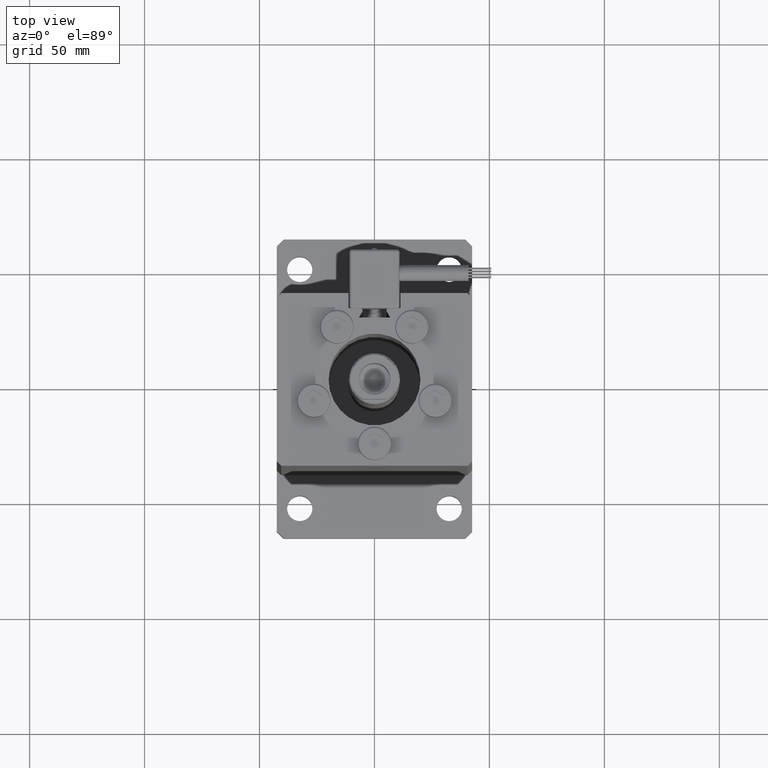
[diagram: clean part render]
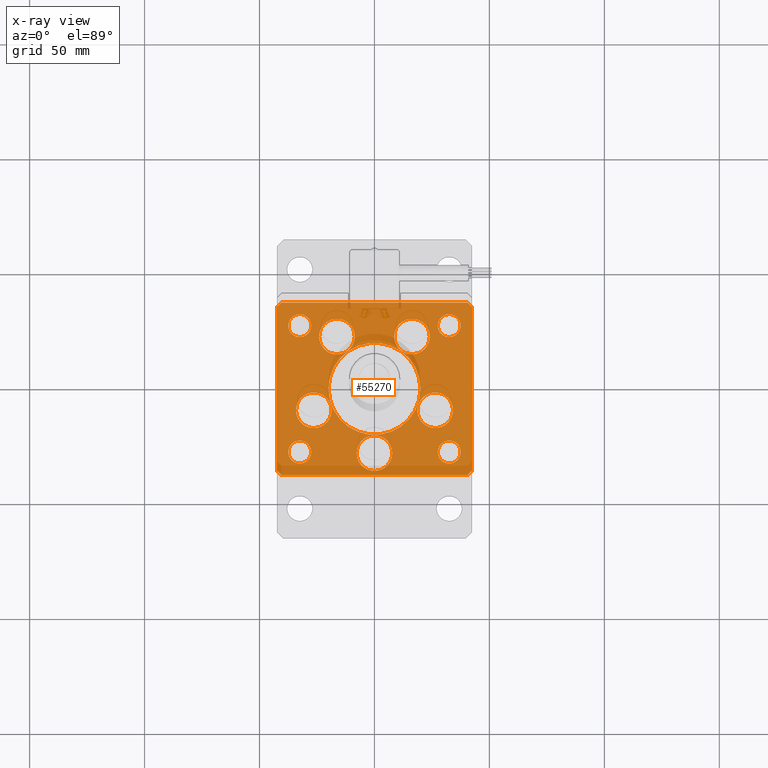
[diagram: x-ray — body ghosted, one internal face saturated and labeled with its STEP entity id]
A machine part, top view, then the same camera in x-ray: the body is ghosted and one INTERNAL B-rep face — a face not visible from any outside direction — is saturated and labeled: STEP entity #55270.
In plain terms, the highlighted planar face has unit normal (0, 0, -1).
Its self-contained STEP definition (entity closure, byte-faithful):
#560 = ORIENTED_EDGE ( 'NONE', *, *, #10872, .F. ) ;
#1086 = ORIENTED_EDGE ( 'NONE', *, *, #26022, .T. ) ;
#1440 = FACE_BOUND ( 'NONE', #5302, .T. ) ;
#2058 = VECTOR ( 'NONE', #14228, 1000.000000000000000 ) ;
#2232 = LINE ( 'NONE', #50624, #31584 ) ;
#2736 = CARTESIAN_POINT ( 'NONE',  ( -32.50000000000000000, -27.49999999999999645, 0.000000000000000000 ) ) ;
#3132 = AXIS2_PLACEMENT_3D ( 'NONE', #14532, #31913, #49265 ) ;
#3239 = DIRECTION ( 'NONE',  ( 0.000000000000000000, -0.000000000000000000, -1.000000000000000000 ) ) ;
#3583 = EDGE_LOOP ( 'NONE', ( #3761, #11223 ) ) ;
#3761 = ORIENTED_EDGE ( 'NONE', *, *, #19691, .T. ) ;
#3901 = AXIS2_PLACEMENT_3D ( 'NONE', #27201, #44279, #27478 ) ;
#4150 = CIRCLE ( 'NONE', #34140, 20.00000000000000000 ) ;
#4163 = CARTESIAN_POINT ( 'NONE',  ( -40.50000000000000711, 37.49999999999997868, 0.000000000000000000 ) ) ;
#4589 = CIRCLE ( 'NONE', #36421, 5.000000000000000888 ) ;
#4790 = VERTEX_POINT ( 'NONE', #9635 ) ;
#4816 = AXIS2_PLACEMENT_3D ( 'NONE', #16405, #33785, #25252 ) ;
#5302 = EDGE_LOOP ( 'NONE', ( #31663, #30830 ) ) ;
#5481 = CIRCLE ( 'NONE', #37318, 4.999999999999997335 ) ;
#5540 = EDGE_CURVE ( 'NONE', #9070, #12400, #52358, .T. ) ;
#5751 = VECTOR ( 'NONE', #47230, 1000.000000000000114 ) ;
#6483 = VERTEX_POINT ( 'NONE', #52145 ) ;
#7443 = CARTESIAN_POINT ( 'NONE',  ( 32.50000000000000000, -27.49999999999999645, 0.000000000000000000 ) ) ;
#7644 = AXIS2_PLACEMENT_3D ( 'NONE', #28196, #22791, #40168 ) ;
#7765 = CIRCLE ( 'NONE', #32348, 7.750000000000003553 ) ;
#8194 = CARTESIAN_POINT ( 'NONE',  ( 32.50000000000000000, 27.49999999999999645, 0.000000000000000000 ) ) ;
#8254 = CARTESIAN_POINT ( 'NONE',  ( 42.50000000000000711, -35.50000000000000000, 0.000000000000000000 ) ) ;
#8711 = VERTEX_POINT ( 'NONE', #11516 ) ;
#9070 = VERTEX_POINT ( 'NONE', #13346 ) ;
#9419 = ORIENTED_EDGE ( 'NONE', *, *, #10493, .T. ) ;
#9501 = ORIENTED_EDGE ( 'NONE', *, *, #23348, .T. ) ;
#9635 = CARTESIAN_POINT ( 'NONE',  ( 27.50000000000000355, 27.49999999999999645, 0.000000000000000000 ) ) ;
#9786 = EDGE_CURVE ( 'NONE', #30646, #38409, #31173, .T. ) ;
#9896 = VERTEX_POINT ( 'NONE', #25244 ) ;
#10011 = CARTESIAN_POINT ( 'NONE',  ( -32.50000000000000000, 27.50000000000000355, 0.000000000000000000 ) ) ;
#10130 = VERTEX_POINT ( 'NONE', #20256 ) ;
#10262 = FACE_BOUND ( 'NONE', #12512, .T. ) ;
#10414 = CIRCLE ( 'NONE', #42260, 5.000000000000000888 ) ;
#10417 = VERTEX_POINT ( 'NONE', #33853 ) ;
#10446 = DIRECTION ( 'NONE',  ( 1.000000000000000000, 0.000000000000000000, 0.000000000000000000 ) ) ;
#10493 = EDGE_CURVE ( 'NONE', #36242, #31566, #12500, .T. ) ;
#10542 = AXIS2_PLACEMENT_3D ( 'NONE', #41645, #18877, #28269 ) ;
#10872 = EDGE_CURVE ( 'NONE', #52419, #10417, #51175, .T. ) ;
#10911 = CARTESIAN_POINT ( 'NONE',  ( -27.50000000000000000, 27.50000000000000355, 0.000000000000000000 ) ) ;
#11223 = ORIENTED_EDGE ( 'NONE', *, *, #39449, .T. ) ;
#11233 = VERTEX_POINT ( 'NONE', #44781 ) ;
#11516 = CARTESIAN_POINT ( 'NONE',  ( -8.572913342905431833, 22.74999999999999645, 0.000000000000000000 ) ) ;
#11975 = DIRECTION ( 'NONE',  ( 1.000000000000000000, 0.000000000000000000, 0.000000000000000000 ) ) ;
#12201 = CARTESIAN_POINT ( 'NONE',  ( -32.50000000000000000, 27.50000000000000355, 0.000000000000000000 ) ) ;
#12331 = DIRECTION ( 'NONE',  ( 1.000000000000000000, 0.000000000000000000, 0.000000000000000000 ) ) ;
#12400 = VERTEX_POINT ( 'NONE', #41804 ) ;
#12430 = AXIS2_PLACEMENT_3D ( 'NONE', #32627, #28941, #54251 ) ;
#12443 = VERTEX_POINT ( 'NONE', #13309 ) ;
#12474 = CIRCLE ( 'NONE', #19751, 5.000000000000000888 ) ;
#12500 = LINE ( 'NONE', #34698, #5751 ) ;
#12512 = EDGE_LOOP ( 'NONE', ( #23131, #41492 ) ) ;
#12590 = CIRCLE ( 'NONE', #19824, 7.750000000000000000 ) ;
#12877 = EDGE_CURVE ( 'NONE', #21433, #11233, #38562, .T. ) ;
#12887 = LINE ( 'NONE', #51331, #32508 ) ;
#13249 = VERTEX_POINT ( 'NONE', #33287 ) ;
#13309 = CARTESIAN_POINT ( 'NONE',  ( -42.50000000000000711, 35.49999999999997158, 0.000000000000000000 ) ) ;
#13346 = CARTESIAN_POINT ( 'NONE',  ( -40.49999999999999289, -37.50000000000002132, 0.000000000000000000 ) ) ;
#13405 = AXIS2_PLACEMENT_3D ( 'NONE', #8194, #52311, #51466 ) ;
#13435 = ORIENTED_EDGE ( 'NONE', *, *, #46544, .T. ) ;
#13699 = FACE_BOUND ( 'NONE', #25543, .T. ) ;
#14038 = EDGE_CURVE ( 'NONE', #33421, #22844, #10414, .T. ) ;
#14098 = CARTESIAN_POINT ( 'NONE',  ( -32.50000000000000000, -27.49999999999999645, 0.000000000000000000 ) ) ;
#14118 = ORIENTED_EDGE ( 'NONE', *, *, #33695, .T. ) ;
#14228 = DIRECTION ( 'NONE',  ( 9.773090005503140331E-17, -1.000000000000000000, 0.000000000000000000 ) ) ;
#14532 = CARTESIAN_POINT ( 'NONE',  ( 0.000000000000000000, 0.000000000000000000, 0.000000000000000000 ) ) ;
#14639 = VERTEX_POINT ( 'NONE', #24042 ) ;
#14709 = ORIENTED_EDGE ( 'NONE', *, *, #9786, .T. ) ;
#15345 = DIRECTION ( 'NONE',  ( 1.000000000000000000, 0.000000000000000000, 0.000000000000000000 ) ) ;
#15735 = CARTESIAN_POINT ( 'NONE',  ( 0.000000000000000000, -1.387778780781445676E-14, 0.000000000000000000 ) ) ;
#16405 = CARTESIAN_POINT ( 'NONE',  ( 0.000000000000000000, -1.387778780781445676E-14, 0.000000000000000000 ) ) ;
#16651 = EDGE_LOOP ( 'NONE', ( #25082, #28557 ) ) ;
#17016 = CARTESIAN_POINT ( 'NONE',  ( -7.749999999999996447, -28.00000000000000000, 0.000000000000000000 ) ) ;
#17022 = EDGE_LOOP ( 'NONE', ( #56254, #25634 ) ) ;
#17234 = EDGE_CURVE ( 'NONE', #28777, #10130, #17815, .T. ) ;
#17281 = AXIS2_PLACEMENT_3D ( 'NONE', #26561, #52469, #44212 ) ;
#17309 = DIRECTION ( 'NONE',  ( 0.000000000000000000, -0.000000000000000000, -1.000000000000000000 ) ) ;
#17772 = CARTESIAN_POINT ( 'NONE',  ( 16.32291334290542295, 22.75000000000000000, 0.000000000000000000 ) ) ;
#17815 = CIRCLE ( 'NONE', #10542, 7.750000000000000000 ) ;
#17974 = FACE_BOUND ( 'NONE', #16651, .T. ) ;
#18246 = FACE_BOUND ( 'NONE', #51951, .T. ) ;
#18270 = DIRECTION ( 'NONE',  ( 1.000000000000000000, 0.000000000000000000, 0.000000000000000000 ) ) ;
#18284 = VERTEX_POINT ( 'NONE', #36108 ) ;
#18490 = CARTESIAN_POINT ( 'NONE',  ( -42.50000000000000711, 35.49999999999997158, 0.000000000000000000 ) ) ;
#18877 = DIRECTION ( 'NONE',  ( 0.000000000000000000, -0.000000000000000000, -1.000000000000000000 ) ) ;
#19612 = DIRECTION ( 'NONE',  ( 0.7071067811865474617, 0.7071067811865474617, 0.000000000000000000 ) ) ;
#19691 = EDGE_CURVE ( 'NONE', #9896, #26443, #21633, .T. ) ;
#19741 = DIRECTION ( 'NONE',  ( 1.000000000000000000, 0.000000000000000000, 0.000000000000000000 ) ) ;
#19751 = AXIS2_PLACEMENT_3D ( 'NONE', #10011, #35365, #18270 ) ;
#19824 = AXIS2_PLACEMENT_3D ( 'NONE', #21072, #42448, #34468 ) ;
#19956 = CARTESIAN_POINT ( 'NONE',  ( -26.39865316429776954, -9.333333333333337478, 0.000000000000000000 ) ) ;
#20256 = CARTESIAN_POINT ( 'NONE',  ( 34.14865316429776954, -9.333333333333328596, 0.000000000000000000 ) ) ;
#20618 = EDGE_LOOP ( 'NONE', ( #37296, #13435 ) ) ;
#21072 = CARTESIAN_POINT ( 'NONE',  ( 26.39865316429776954, -9.333333333333330373, 0.000000000000000000 ) ) ;
#21159 = VECTOR ( 'NONE', #53189, 1000.000000000000000 ) ;
#21433 = VERTEX_POINT ( 'NONE', #29994 ) ;
#21488 = CARTESIAN_POINT ( 'NONE',  ( -26.39865316429776954, -9.333333333333337478, 0.000000000000000000 ) ) ;
#21633 = CIRCLE ( 'NONE', #54359, 7.750000000000003553 ) ;
#21836 = CIRCLE ( 'NONE', #17281, 7.750000000000000000 ) ;
#21948 = VECTOR ( 'NONE', #50817, 1000.000000000000000 ) ;
#22440 = EDGE_CURVE ( 'NONE', #53728, #50113, #21836, .T. ) ;
#22531 = FACE_BOUND ( 'NONE', #41289, .T. ) ;
#22603 = EDGE_CURVE ( 'NONE', #18284, #13249, #5481, .T. ) ;
#22791 = DIRECTION ( 'NONE',  ( 0.000000000000000000, -0.000000000000000000, -1.000000000000000000 ) ) ;
#22844 = VERTEX_POINT ( 'NONE', #51484 ) ;
#22850 = EDGE_CURVE ( 'NONE', #6483, #4790, #38256, .T. ) ;
#23018 = CARTESIAN_POINT ( 'NONE',  ( -37.50000000000000711, -27.49999999999999645, 0.000000000000000000 ) ) ;
#23131 = ORIENTED_EDGE ( 'NONE', *, *, #43497, .T. ) ;
#23348 = EDGE_CURVE ( 'NONE', #38409, #30646, #4589, .T. ) ;
#24042 = CARTESIAN_POINT ( 'NONE',  ( -42.50000000000000000, -35.50000000000000711, 0.000000000000000000 ) ) ;
#24504 = LINE ( 'NONE', #37897, #47716 ) ;
#24580 = DIRECTION ( 'NONE',  ( 0.000000000000000000, -0.000000000000000000, -1.000000000000000000 ) ) ;
#24724 = EDGE_CURVE ( 'NONE', #50113, #53728, #50993, .T. ) ;
#24808 = DIRECTION ( 'NONE',  ( 1.000000000000000000, 0.000000000000000000, 0.000000000000000000 ) ) ;
#24929 = DIRECTION ( 'NONE',  ( -1.000000000000000000, -3.426614273534436165E-16, 0.000000000000000000 ) ) ;
#25082 = ORIENTED_EDGE ( 'NONE', *, *, #22850, .F. ) ;
#25244 = CARTESIAN_POINT ( 'NONE',  ( 8.572913342905422951, 22.75000000000000000, 0.000000000000000000 ) ) ;
#25252 = DIRECTION ( 'NONE',  ( 1.000000000000000000, 0.000000000000000000, 0.000000000000000000 ) ) ;
#25543 = EDGE_LOOP ( 'NONE', ( #42970, #560 ) ) ;
#25634 = ORIENTED_EDGE ( 'NONE', *, *, #22440, .T. ) ;
#25862 = VERTEX_POINT ( 'NONE', #4163 ) ;
#25998 = EDGE_CURVE ( 'NONE', #31566, #25862, #33473, .T. ) ;
#26022 = EDGE_CURVE ( 'NONE', #14639, #9070, #55358, .T. ) ;
#26443 = VERTEX_POINT ( 'NONE', #38517 ) ;
#26561 = CARTESIAN_POINT ( 'NONE',  ( 3.429011037612589276E-15, -28.00000000000000000, 0.000000000000000000 ) ) ;
#27086 = CARTESIAN_POINT ( 'NONE',  ( 42.49999999999992895, 35.50000000000000000, 0.000000000000000000 ) ) ;
#27201 = CARTESIAN_POINT ( 'NONE',  ( -16.32291334290543006, 22.74999999999999645, 0.000000000000000000 ) ) ;
#27478 = DIRECTION ( 'NONE',  ( 1.000000000000000000, 0.000000000000000000, 0.000000000000000000 ) ) ;
#27942 = ORIENTED_EDGE ( 'NONE', *, *, #25998, .T. ) ;
#28196 = CARTESIAN_POINT ( 'NONE',  ( -16.32291334290543006, 22.74999999999999645, 0.000000000000000000 ) ) ;
#28269 = DIRECTION ( 'NONE',  ( 1.000000000000000000, 0.000000000000000000, 0.000000000000000000 ) ) ;
#28356 = CARTESIAN_POINT ( 'NONE',  ( -42.50000000000000000, -35.50000000000000711, 0.000000000000000000 ) ) ;
#28557 = ORIENTED_EDGE ( 'NONE', *, *, #44120, .F. ) ;
#28694 = EDGE_CURVE ( 'NONE', #12443, #14639, #39864, .T. ) ;
#28777 = VERTEX_POINT ( 'NONE', #48680 ) ;
#28941 = DIRECTION ( 'NONE',  ( 0.000000000000000000, -0.000000000000000000, -1.000000000000000000 ) ) ;
#29994 = CARTESIAN_POINT ( 'NONE',  ( -34.14865316429776954, -9.333333333333337478, 0.000000000000000000 ) ) ;
#30095 = AXIS2_PLACEMENT_3D ( 'NONE', #34417, #30152, #47500 ) ;
#30152 = DIRECTION ( 'NONE',  ( -0.000000000000000000, 0.000000000000000000, 1.000000000000000000 ) ) ;
#30160 = CARTESIAN_POINT ( 'NONE',  ( -20.00000000000000000, -1.142849420951974906E-14, 0.000000000000000000 ) ) ;
#30276 = DIRECTION ( 'NONE',  ( -0.7071067811865463515, -0.7071067811865487940, 0.000000000000000000 ) ) ;
#30462 = CIRCLE ( 'NONE', #34053, 7.750000000000000000 ) ;
#30646 = VERTEX_POINT ( 'NONE', #23018 ) ;
#30813 = FACE_BOUND ( 'NONE', #3583, .T. ) ;
#30830 = ORIENTED_EDGE ( 'NONE', *, *, #51686, .T. ) ;
#31157 = DIRECTION ( 'NONE',  ( 0.000000000000000000, -0.000000000000000000, -1.000000000000000000 ) ) ;
#31173 = CIRCLE ( 'NONE', #41161, 5.000000000000000888 ) ;
#31365 = FACE_BOUND ( 'NONE', #20618, .T. ) ;
#31566 = VERTEX_POINT ( 'NONE', #32130 ) ;
#31584 = VECTOR ( 'NONE', #19612, 1000.000000000000114 ) ;
#31663 = ORIENTED_EDGE ( 'NONE', *, *, #36325, .T. ) ;
#31751 = ORIENTED_EDGE ( 'NONE', *, *, #44678, .T. ) ;
#31913 = DIRECTION ( 'NONE',  ( -0.000000000000000000, 0.000000000000000000, 1.000000000000000000 ) ) ;
#32010 = CARTESIAN_POINT ( 'NONE',  ( 16.32291334290542295, 22.75000000000000000, 0.000000000000000000 ) ) ;
#32130 = CARTESIAN_POINT ( 'NONE',  ( 40.49999999999991473, 37.50000000000000711, 0.000000000000000000 ) ) ;
#32183 = CIRCLE ( 'NONE', #7644, 7.750000000000000000 ) ;
#32348 = AXIS2_PLACEMENT_3D ( 'NONE', #32010, #3239, #46786 ) ;
#32432 = ORIENTED_EDGE ( 'NONE', *, *, #43995, .T. ) ;
#32479 = ORIENTED_EDGE ( 'NONE', *, *, #14038, .F. ) ;
#32508 = VECTOR ( 'NONE', #30276, 1000.000000000000000 ) ;
#32627 = CARTESIAN_POINT ( 'NONE',  ( 32.50000000000000000, -27.49999999999999645, 0.000000000000000000 ) ) ;
#33031 = ORIENTED_EDGE ( 'NONE', *, *, #28694, .T. ) ;
#33287 = CARTESIAN_POINT ( 'NONE',  ( 37.50000000000000000, -27.49999999999999645, 0.000000000000000000 ) ) ;
#33341 = DIRECTION ( 'NONE',  ( -1.172770800660376741E-15, 1.000000000000000000, 0.000000000000000000 ) ) ;
#33421 = VERTEX_POINT ( 'NONE', #10911 ) ;
#33473 = LINE ( 'NONE', #38026, #33776 ) ;
#33695 = EDGE_CURVE ( 'NONE', #40473, #36242, #24504, .T. ) ;
#33776 = VECTOR ( 'NONE', #24929, 1000.000000000000000 ) ;
#33785 = DIRECTION ( 'NONE',  ( 0.000000000000000000, 0.000000000000000000, 1.000000000000000000 ) ) ;
#33853 = CARTESIAN_POINT ( 'NONE',  ( 20.00000000000000000, -1.387778780781445676E-14, 0.000000000000000000 ) ) ;
#34053 = AXIS2_PLACEMENT_3D ( 'NONE', #21488, #42559, #56194 ) ;
#34140 = AXIS2_PLACEMENT_3D ( 'NONE', #15735, #54178, #19741 ) ;
#34417 = CARTESIAN_POINT ( 'NONE',  ( 32.50000000000000000, 27.49999999999999645, 0.000000000000000000 ) ) ;
#34468 = DIRECTION ( 'NONE',  ( 1.000000000000000000, 0.000000000000000000, 0.000000000000000000 ) ) ;
#34698 = CARTESIAN_POINT ( 'NONE',  ( 42.49999999999992895, 35.50000000000000000, 0.000000000000000000 ) ) ;
#35343 = FACE_OUTER_BOUND ( 'NONE', #38993, .T. ) ;
#35365 = DIRECTION ( 'NONE',  ( -0.000000000000000000, 0.000000000000000000, 1.000000000000000000 ) ) ;
#36108 = CARTESIAN_POINT ( 'NONE',  ( 27.50000000000000355, -27.49999999999999645, 0.000000000000000000 ) ) ;
#36242 = VERTEX_POINT ( 'NONE', #27086 ) ;
#36325 = EDGE_CURVE ( 'NONE', #46789, #8711, #32183, .T. ) ;
#36421 = AXIS2_PLACEMENT_3D ( 'NONE', #14098, #24580, #12331 ) ;
#36805 = EDGE_CURVE ( 'NONE', #11233, #21433, #30462, .T. ) ;
#36990 = CIRCLE ( 'NONE', #12430, 4.999999999999997335 ) ;
#37296 = ORIENTED_EDGE ( 'NONE', *, *, #17234, .T. ) ;
#37318 = AXIS2_PLACEMENT_3D ( 'NONE', #7443, #37918, #24808 ) ;
#37488 = DIRECTION ( 'NONE',  ( 0.000000000000000000, -0.000000000000000000, -1.000000000000000000 ) ) ;
#37897 = CARTESIAN_POINT ( 'NONE',  ( 42.50000000000000711, -35.50000000000000000, 0.000000000000000000 ) ) ;
#37918 = DIRECTION ( 'NONE',  ( 0.000000000000000000, -0.000000000000000000, -1.000000000000000000 ) ) ;
#37969 = CIRCLE ( 'NONE', #13405, 4.999999999999997335 ) ;
#38026 = CARTESIAN_POINT ( 'NONE',  ( 40.49999999999991473, 37.50000000000000711, 0.000000000000000000 ) ) ;
#38256 = CIRCLE ( 'NONE', #30095, 4.999999999999997335 ) ;
#38409 = VERTEX_POINT ( 'NONE', #52581 ) ;
#38517 = CARTESIAN_POINT ( 'NONE',  ( 24.07291334290542650, 22.75000000000000000, 0.000000000000000000 ) ) ;
#38562 = CIRCLE ( 'NONE', #51256, 7.750000000000000000 ) ;
#38993 = EDGE_LOOP ( 'NONE', ( #1086, #41975, #32432, #14118, #9419, #27942, #31751, #33031 ) ) ;
#39449 = EDGE_CURVE ( 'NONE', #26443, #9896, #7765, .T. ) ;
#39632 = FACE_BOUND ( 'NONE', #42880, .T. ) ;
#39641 = ORIENTED_EDGE ( 'NONE', *, *, #36805, .T. ) ;
#39864 = LINE ( 'NONE', #18490, #2058 ) ;
#39896 = EDGE_CURVE ( 'NONE', #10417, #52419, #4150, .T. ) ;
#40168 = DIRECTION ( 'NONE',  ( 1.000000000000000000, 0.000000000000000000, 0.000000000000000000 ) ) ;
#40250 = DIRECTION ( 'NONE',  ( 1.000000000000000000, 0.000000000000000000, 0.000000000000000000 ) ) ;
#40473 = VERTEX_POINT ( 'NONE', #8254 ) ;
#41161 = AXIS2_PLACEMENT_3D ( 'NONE', #2736, #37488, #10446 ) ;
#41289 = EDGE_LOOP ( 'NONE', ( #32479, #55248 ) ) ;
#41492 = ORIENTED_EDGE ( 'NONE', *, *, #22603, .T. ) ;
#41645 = CARTESIAN_POINT ( 'NONE',  ( 26.39865316429776954, -9.333333333333330373, 0.000000000000000000 ) ) ;
#41804 = CARTESIAN_POINT ( 'NONE',  ( 40.50000000000000000, -37.50000000000000711, 0.000000000000000000 ) ) ;
#41975 = ORIENTED_EDGE ( 'NONE', *, *, #5540, .T. ) ;
#42260 = AXIS2_PLACEMENT_3D ( 'NONE', #12201, #46366, #15345 ) ;
#42351 = ORIENTED_EDGE ( 'NONE', *, *, #12877, .T. ) ;
#42448 = DIRECTION ( 'NONE',  ( 0.000000000000000000, -0.000000000000000000, -1.000000000000000000 ) ) ;
#42559 = DIRECTION ( 'NONE',  ( 0.000000000000000000, -0.000000000000000000, -1.000000000000000000 ) ) ;
#42880 = EDGE_LOOP ( 'NONE', ( #42351, #39641 ) ) ;
#42970 = ORIENTED_EDGE ( 'NONE', *, *, #39896, .F. ) ;
#43497 = EDGE_CURVE ( 'NONE', #13249, #18284, #36990, .T. ) ;
#43507 = CARTESIAN_POINT ( 'NONE',  ( 3.429011037612589276E-15, -28.00000000000000000, 0.000000000000000000 ) ) ;
#43887 = PLANE ( 'NONE',  #3132 ) ;
#43995 = EDGE_CURVE ( 'NONE', #12400, #40473, #2232, .T. ) ;
#44120 = EDGE_CURVE ( 'NONE', #4790, #6483, #37969, .T. ) ;
#44212 = DIRECTION ( 'NONE',  ( 1.000000000000000000, 0.000000000000000000, 0.000000000000000000 ) ) ;
#44279 = DIRECTION ( 'NONE',  ( 0.000000000000000000, -0.000000000000000000, -1.000000000000000000 ) ) ;
#44678 = EDGE_CURVE ( 'NONE', #25862, #12443, #12887, .T. ) ;
#44781 = CARTESIAN_POINT ( 'NONE',  ( -18.64865316429776954, -9.333333333333335702, 0.000000000000000000 ) ) ;
#44823 = EDGE_CURVE ( 'NONE', #22844, #33421, #12474, .T. ) ;
#46366 = DIRECTION ( 'NONE',  ( -0.000000000000000000, 0.000000000000000000, 1.000000000000000000 ) ) ;
#46544 = EDGE_CURVE ( 'NONE', #10130, #28777, #12590, .T. ) ;
#46786 = DIRECTION ( 'NONE',  ( 1.000000000000000000, 0.000000000000000000, 0.000000000000000000 ) ) ;
#46789 = VERTEX_POINT ( 'NONE', #51474 ) ;
#47230 = DIRECTION ( 'NONE',  ( -0.7071067811865474617, 0.7071067811865474617, 0.000000000000000000 ) ) ;
#47500 = DIRECTION ( 'NONE',  ( 1.000000000000000000, 0.000000000000000000, 0.000000000000000000 ) ) ;
#47716 = VECTOR ( 'NONE', #33341, 1000.000000000000000 ) ;
#47781 = DIRECTION ( 'NONE',  ( 1.000000000000000000, 0.000000000000000000, 0.000000000000000000 ) ) ;
#48288 = AXIS2_PLACEMENT_3D ( 'NONE', #43507, #17309, #47781 ) ;
#48680 = CARTESIAN_POINT ( 'NONE',  ( 18.64865316429776954, -9.333333333333330373, 0.000000000000000000 ) ) ;
#48921 = CARTESIAN_POINT ( 'NONE',  ( -40.49999999999999289, -37.50000000000002132, 0.000000000000000000 ) ) ;
#49265 = DIRECTION ( 'NONE',  ( 1.000000000000000000, 0.000000000000000000, 0.000000000000000000 ) ) ;
#50113 = VERTEX_POINT ( 'NONE', #17016 ) ;
#50265 = CIRCLE ( 'NONE', #3901, 7.750000000000000000 ) ;
#50624 = CARTESIAN_POINT ( 'NONE',  ( 40.50000000000000000, -37.50000000000000711, 0.000000000000000000 ) ) ;
#50817 = DIRECTION ( 'NONE',  ( 0.7071067811865463515, -0.7071067811865487940, 0.000000000000000000 ) ) ;
#50993 = CIRCLE ( 'NONE', #48288, 7.750000000000000000 ) ;
#51175 = CIRCLE ( 'NONE', #4816, 20.00000000000000000 ) ;
#51256 = AXIS2_PLACEMENT_3D ( 'NONE', #19956, #55509, #11975 ) ;
#51331 = CARTESIAN_POINT ( 'NONE',  ( -40.50000000000000711, 37.49999999999997868, 0.000000000000000000 ) ) ;
#51466 = DIRECTION ( 'NONE',  ( 1.000000000000000000, 0.000000000000000000, 0.000000000000000000 ) ) ;
#51474 = CARTESIAN_POINT ( 'NONE',  ( -24.07291334290543006, 22.74999999999999645, 0.000000000000000000 ) ) ;
#51484 = CARTESIAN_POINT ( 'NONE',  ( -37.50000000000000711, 27.50000000000000355, 0.000000000000000000 ) ) ;
#51686 = EDGE_CURVE ( 'NONE', #8711, #46789, #50265, .T. ) ;
#51951 = EDGE_LOOP ( 'NONE', ( #9501, #14709 ) ) ;
#52145 = CARTESIAN_POINT ( 'NONE',  ( 37.50000000000000000, 27.49999999999999645, 0.000000000000000000 ) ) ;
#52311 = DIRECTION ( 'NONE',  ( -0.000000000000000000, 0.000000000000000000, 1.000000000000000000 ) ) ;
#52358 = LINE ( 'NONE', #48921, #21159 ) ;
#52419 = VERTEX_POINT ( 'NONE', #30160 ) ;
#52469 = DIRECTION ( 'NONE',  ( 0.000000000000000000, -0.000000000000000000, -1.000000000000000000 ) ) ;
#52581 = CARTESIAN_POINT ( 'NONE',  ( -27.50000000000000000, -27.49999999999999645, 0.000000000000000000 ) ) ;
#53189 = DIRECTION ( 'NONE',  ( 1.000000000000000000, 1.713307136767217096E-16, 0.000000000000000000 ) ) ;
#53532 = FACE_BOUND ( 'NONE', #17022, .T. ) ;
#53728 = VERTEX_POINT ( 'NONE', #55683 ) ;
#54178 = DIRECTION ( 'NONE',  ( 0.000000000000000000, 0.000000000000000000, 1.000000000000000000 ) ) ;
#54251 = DIRECTION ( 'NONE',  ( 1.000000000000000000, 0.000000000000000000, 0.000000000000000000 ) ) ;
#54359 = AXIS2_PLACEMENT_3D ( 'NONE', #17772, #31157, #40250 ) ;
#55248 = ORIENTED_EDGE ( 'NONE', *, *, #44823, .F. ) ;
#55270 = ADVANCED_FACE ( 'NONE', ( #13699, #1440, #30813, #31365, #53532, #39632, #17974, #10262, #22531, #35343, #18246 ), #43887, .T. ) ;
#55358 = LINE ( 'NONE', #28356, #21948 ) ;
#55509 = DIRECTION ( 'NONE',  ( 0.000000000000000000, -0.000000000000000000, -1.000000000000000000 ) ) ;
#55683 = CARTESIAN_POINT ( 'NONE',  ( 7.750000000000003553, -28.00000000000000000, 0.000000000000000000 ) ) ;
#56194 = DIRECTION ( 'NONE',  ( 1.000000000000000000, 0.000000000000000000, 0.000000000000000000 ) ) ;
#56254 = ORIENTED_EDGE ( 'NONE', *, *, #24724, .T. ) ;